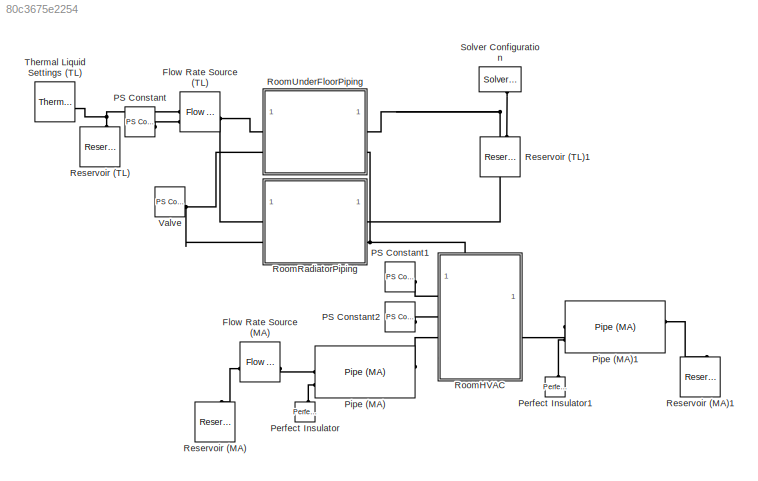
MODEL slx_80c3675e2254
KIND model
CONFIG AbsTol = 1e-3
CONFIG EnableMultiTasking = off
CONFIG FixedStep = auto
CONFIG MaxStep = auto
CONFIG MinStep = auto
CONFIG RelTol = 1e-3
CONFIG SampleTimeConstraint = Unconstrained
CONFIG SolverName = VariableStepAuto
CONFIG StartTime = 0.0
CONFIG StopTime = 36000
BLOCK [Reference] Flow Rate Source (MA)  REF=fl_lib/Moist Air/Sources/Flow Rate Source
(MA)
  SourceBlock = fl_lib/Moist Air/Sources/Flow Rate Source\n(MA)
  SourceType = Flow Rate Source\n(MA)
BLOCK [Reference] Flow Rate Source (TL)  REF=fl_lib/Thermal Liquid/Sources/Flow Rate Source
(TL)
  SourceBlock = fl_lib/Thermal Liquid/Sources/Flow Rate Source\n(TL)
  SourceType = Flow Rate Source\n(TL)
BLOCK [Reference] PS Constant  REF=fl_lib/Physical Signals/Sources/PS Constant
  SourceBlock = fl_lib/Physical Signals/Sources/PS Constant
  SourceType = PS Constant
BLOCK [Reference] PS Constant1  REF=fl_lib/Physical Signals/Sources/PS Constant
  SourceBlock = fl_lib/Physical Signals/Sources/PS Constant
  SourceType = PS Constant
BLOCK [Reference] PS Constant2  REF=fl_lib/Physical Signals/Sources/PS Constant
  SourceBlock = fl_lib/Physical Signals/Sources/PS Constant
  SourceType = PS Constant
BLOCK [Reference] Perfect Insulator  REF=fl_lib/Thermal/Thermal Elements/Perfect Insulator
  NameLocation = right
  SourceBlock = fl_lib/Thermal/Thermal Elements/Perfect Insulator
  SourceType = Perfect Insulator
BLOCK [Reference] Perfect Insulator1  REF=fl_lib/Thermal/Thermal Elements/Perfect Insulator
  NameLocation = right
  SourceBlock = fl_lib/Thermal/Thermal Elements/Perfect Insulator
  SourceType = Perfect Insulator
BLOCK [Reference] Pipe (MA)  REF=fl_lib/Moist Air/Elements/Pipe (MA)
  SourceBlock = fl_lib/Moist Air/Elements/Pipe (MA)
  SourceType = Pipe (MA)
BLOCK [Reference] Pipe (MA)1  REF=fl_lib/Moist Air/Elements/Pipe (MA)
  SourceBlock = fl_lib/Moist Air/Elements/Pipe (MA)
  SourceType = Pipe (MA)
BLOCK [Reference] Reservoir (MA)  REF=fl_lib/Moist Air/Elements/Reservoir (MA)
  NameLocation = right
  SourceBlock = fl_lib/Moist Air/Elements/Reservoir (MA)
  SourceType = Reservoir (MA)
BLOCK [Reference] Reservoir (MA)1  REF=fl_lib/Moist Air/Elements/Reservoir (MA)
  NameLocation = right
  SourceBlock = fl_lib/Moist Air/Elements/Reservoir (MA)
  SourceType = Reservoir (MA)
BLOCK [Reference] Reservoir (TL)  REF=fl_lib/Thermal Liquid/Elements/Reservoir (TL)
  NameLocation = right
  SourceBlock = fl_lib/Thermal Liquid/Elements/Reservoir (TL)
  SourceType = Reservoir (TL)
BLOCK [Reference] Reservoir (TL)1  REF=fl_lib/Thermal Liquid/Elements/Reservoir (TL)
  NameLocation = right
  SourceBlock = fl_lib/Thermal Liquid/Elements/Reservoir (TL)
  SourceType = Reservoir (TL)
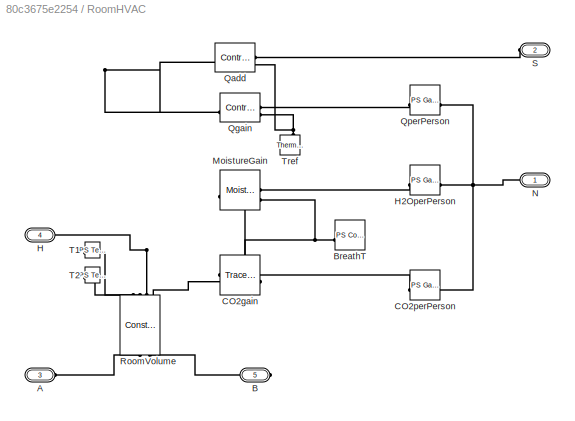
BLOCK [SubSystem] RoomHVAC
  PortSchema = {"entries":[{"content":{"sides":[{"content":{"connectorIds":["LConn1","LConn2","LConn3"]},"type":"ConnectorPlacement.EquallySpacedRectSide","uuid":"1f9dd9b5-3bf6-4814-b841-c20cb5c6b200"},{"content":{"connectorIds":["RConn1"],"side":"RIGHT"},"type":"ConnectorPlacement.EquallySpacedRectSide","uuid":"2c7853a1-d392-479e-8ded-97e635320fc4"},{"content":{"connectorIds":["LConn4"],"side":"TOP"},"type":"Co...<+271ch>
BLOCK [PMIOPort] RoomHVAC/A
  Port = 3
  Side = Left
BLOCK [PMIOPort] RoomHVAC/B
  Port = 5
  Side = Right
BLOCK [Reference] RoomHVAC/BreathT  REF=fl_lib/Physical Signals/Sources/PS Constant
  NameLocation = right
  SourceBlock = fl_lib/Physical Signals/Sources/PS Constant
  SourceType = PS Constant
BLOCK [Reference] RoomHVAC/CO2gain  REF=fl_lib/Moist Air/Sources/Moisture & Trace Gas
Sources/Trace Gas Source
(MA)
  SourceBlock = fl_lib/Moist Air/Sources/Moisture & Trace Gas\nSources/Trace Gas Source\n(MA)
  SourceType = Trace Gas Source\n(MA)
BLOCK [Reference] RoomHVAC/CO2perPerson  REF=fl_lib/Physical Signals/Functions/PS Gain
  SourceBlock = fl_lib/Physical Signals/Functions/PS Gain
  SourceType = PS Gain
BLOCK [PMIOPort] RoomHVAC/H
  NameLocation = left
  Port = 4
  Side = Left
BLOCK [Reference] RoomHVAC/H2OperPerson  REF=fl_lib/Physical Signals/Functions/PS Gain
  SourceBlock = fl_lib/Physical Signals/Functions/PS Gain
  SourceType = PS Gain
BLOCK [Reference] RoomHVAC/MoistureGain  REF=fl_lib/Moist Air/Sources/Moisture & Trace Gas
Sources/Moisture Source (MA)
  SourceBlock = fl_lib/Moist Air/Sources/Moisture & Trace Gas\nSources/Moisture Source (MA)
  SourceType = Moisture Source (MA)
BLOCK [PMIOPort] RoomHVAC/N
  Side = Left
BLOCK [Reference] RoomHVAC/Qadd  REF=fl_lib/Thermal/Thermal Sources/Controlled Heat Flow
Rate Source
  SourceBlock = fl_lib/Thermal/Thermal Sources/Controlled Heat Flow\nRate Source
  SourceType = Controlled Heat Flow\nRate Source
BLOCK [Reference] RoomHVAC/Qgain  REF=fl_lib/Thermal/Thermal Sources/Controlled Heat Flow
Rate Source
  SourceBlock = fl_lib/Thermal/Thermal Sources/Controlled Heat Flow\nRate Source
  SourceType = Controlled Heat Flow\nRate Source
BLOCK [Reference] RoomHVAC/QperPerson  REF=fl_lib/Physical Signals/Functions/PS Gain
  SourceBlock = fl_lib/Physical Signals/Functions/PS Gain
  SourceType = PS Gain
BLOCK [Reference] RoomHVAC/RoomVolume  REF=fl_lib/Moist Air/Elements/Constant Volume
Chamber (MA)
  NameLocation = left
  SourceBlock = fl_lib/Moist Air/Elements/Constant Volume\nChamber (MA)
  SourceType = Constant Volume\nChamber (MA)
BLOCK [PMIOPort] RoomHVAC/S
  Port = 2
  Side = Left
BLOCK [Reference] RoomHVAC/T1  REF=fl_lib/Physical Signals/Sinks/PS Terminator
  NameLocation = left
  SourceBlock = fl_lib/Physical Signals/Sinks/PS Terminator
  SourceType = PS Terminator
BLOCK [Reference] RoomHVAC/T2  REF=fl_lib/Physical Signals/Sinks/PS Terminator
  NameLocation = left
  SourceBlock = fl_lib/Physical Signals/Sinks/PS Terminator
  SourceType = PS Terminator
BLOCK [Reference] RoomHVAC/Tref  REF=fl_lib/Thermal/Thermal Elements/Thermal Reference
  NameLocation = right
  SourceBlock = fl_lib/Thermal/Thermal Elements/Thermal Reference
  SourceType = Thermal Reference
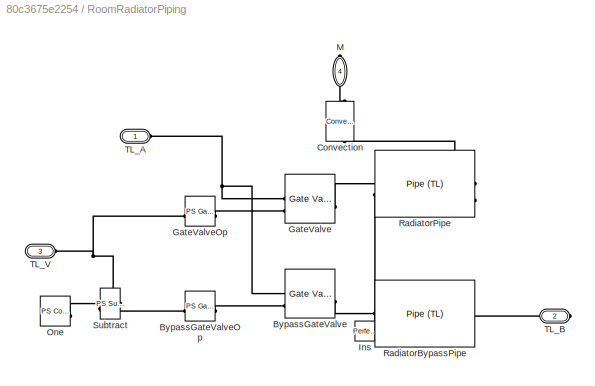
BLOCK [SubSystem] RoomRadiatorPiping
BLOCK [Reference] RoomRadiatorPiping/BypassGateValve  REF=SimscapeFluids_lib/Thermal Liquid/Valves & Orifices/Flow Control Valves/Gate Valve (TL)
  SourceBlock = SimscapeFluids_lib/Thermal Liquid/Valves & Orifices/Flow Control Valves/Gate Valve (TL)
  SourceType = Gate Valve (TL)
BLOCK [Reference] RoomRadiatorPiping/BypassGateValveOp  REF=fl_lib/Physical Signals/Functions/PS Gain
  SourceBlock = fl_lib/Physical Signals/Functions/PS Gain
  SourceType = PS Gain
BLOCK [Reference] RoomRadiatorPiping/Convection  REF=fl_lib/Thermal/Thermal Elements/Convective Heat
Transfer
  NameLocation = right
  SourceBlock = fl_lib/Thermal/Thermal Elements/Convective Heat\nTransfer
  SourceType = Convective Heat\nTransfer
BLOCK [Reference] RoomRadiatorPiping/GateValve  REF=SimscapeFluids_lib/Thermal Liquid/Valves & Orifices/Flow Control Valves/Gate Valve (TL)
  SourceBlock = SimscapeFluids_lib/Thermal Liquid/Valves & Orifices/Flow Control Valves/Gate Valve (TL)
  SourceType = Gate Valve (TL)
BLOCK [Reference] RoomRadiatorPiping/GateValveOp  REF=fl_lib/Physical Signals/Functions/PS Gain
  SourceBlock = fl_lib/Physical Signals/Functions/PS Gain
  SourceType = PS Gain
BLOCK [Reference] RoomRadiatorPiping/Ins  REF=fl_lib/Thermal/Thermal Elements/Perfect Insulator
  SourceBlock = fl_lib/Thermal/Thermal Elements/Perfect Insulator
  SourceType = Perfect Insulator
BLOCK [PMIOPort] RoomRadiatorPiping/M
  NameLocation = top
  Port = 4
  Side = Right
BLOCK [Reference] RoomRadiatorPiping/One  REF=fl_lib/Physical Signals/Sources/PS Constant
  SourceBlock = fl_lib/Physical Signals/Sources/PS Constant
  SourceType = PS Constant
BLOCK [Reference] RoomRadiatorPiping/RadiatorBypassPipe  REF=fl_lib/Thermal Liquid/Elements/Pipe (TL)
  SourceBlock = fl_lib/Thermal Liquid/Elements/Pipe (TL)
  SourceType = Pipe (TL)
BLOCK [Reference] RoomRadiatorPiping/RadiatorPipe  REF=fl_lib/Thermal Liquid/Elements/Pipe (TL)
  NameLocation = top
  SourceBlock = fl_lib/Thermal Liquid/Elements/Pipe (TL)
  SourceType = Pipe (TL)
BLOCK [Reference] RoomRadiatorPiping/Subtract  REF=fl_lib/Physical Signals/Functions/PS Subtract
  SourceBlock = fl_lib/Physical Signals/Functions/PS Subtract
  SourceType = PS Subtract
BLOCK [PMIOPort] RoomRadiatorPiping/TL_A
  NameLocation = left
  Side = Left
BLOCK [PMIOPort] RoomRadiatorPiping/TL_B
  NameLocation = right
  Port = 2
  Side = Right
BLOCK [PMIOPort] RoomRadiatorPiping/TL_V
  NameLocation = left
  Port = 3
  Side = Left
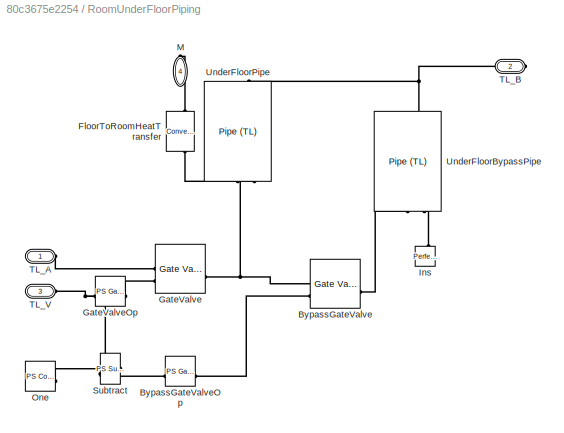
BLOCK [SubSystem] RoomUnderFloorPiping
  NameLocation = top
BLOCK [Reference] RoomUnderFloorPiping/BypassGateValve  REF=SimscapeFluids_lib/Thermal Liquid/Valves & Orifices/Flow Control Valves/Gate Valve (TL)
  SourceBlock = SimscapeFluids_lib/Thermal Liquid/Valves & Orifices/Flow Control Valves/Gate Valve (TL)
  SourceType = Gate Valve (TL)
BLOCK [Reference] RoomUnderFloorPiping/BypassGateValveOp  REF=fl_lib/Physical Signals/Functions/PS Gain
  NameLocation = top
  SourceBlock = fl_lib/Physical Signals/Functions/PS Gain
  SourceType = PS Gain
BLOCK [Reference] RoomUnderFloorPiping/FloorToRoomHeatTransfer  REF=fl_lib/Thermal/Thermal Elements/Convective Heat
Transfer
  NameLocation = left
  SourceBlock = fl_lib/Thermal/Thermal Elements/Convective Heat\nTransfer
  SourceType = Convective Heat\nTransfer
BLOCK [Reference] RoomUnderFloorPiping/GateValve  REF=SimscapeFluids_lib/Thermal Liquid/Valves & Orifices/Flow Control Valves/Gate Valve (TL)
  SourceBlock = SimscapeFluids_lib/Thermal Liquid/Valves & Orifices/Flow Control Valves/Gate Valve (TL)
  SourceType = Gate Valve (TL)
BLOCK [Reference] RoomUnderFloorPiping/GateValveOp  REF=fl_lib/Physical Signals/Functions/PS Gain
  NameLocation = top
  SourceBlock = fl_lib/Physical Signals/Functions/PS Gain
  SourceType = PS Gain
BLOCK [Reference] RoomUnderFloorPiping/Ins  REF=fl_lib/Thermal/Thermal Elements/Perfect Insulator
  NameLocation = right
  SourceBlock = fl_lib/Thermal/Thermal Elements/Perfect Insulator
  SourceType = Perfect Insulator
BLOCK [PMIOPort] RoomUnderFloorPiping/M
  NameLocation = top
  Port = 4
  Side = Right
BLOCK [Reference] RoomUnderFloorPiping/One  REF=fl_lib/Physical Signals/Sources/PS Constant
  SourceBlock = fl_lib/Physical Signals/Sources/PS Constant
  SourceType = PS Constant
BLOCK [Reference] RoomUnderFloorPiping/Subtract  REF=fl_lib/Physical Signals/Functions/PS Subtract
  SourceBlock = fl_lib/Physical Signals/Functions/PS Subtract
  SourceType = PS Subtract
BLOCK [PMIOPort] RoomUnderFloorPiping/TL_A
  NameLocation = left
  Side = Left
BLOCK [PMIOPort] RoomUnderFloorPiping/TL_B
  NameLocation = right
  Port = 2
  Side = Right
BLOCK [PMIOPort] RoomUnderFloorPiping/TL_V
  NameLocation = left
  Port = 3
  Side = Left
BLOCK [Reference] RoomUnderFloorPiping/UnderFloorBypassPipe  REF=fl_lib/Thermal Liquid/Elements/Pipe (TL)
  NameLocation = right
  SourceBlock = fl_lib/Thermal Liquid/Elements/Pipe (TL)
  SourceType = Pipe (TL)
BLOCK [Reference] RoomUnderFloorPiping/UnderFloorPipe  REF=fl_lib/Thermal Liquid/Elements/Pipe (TL)
  NameLocation = right
  SourceBlock = fl_lib/Thermal Liquid/Elements/Pipe (TL)
  SourceType = Pipe (TL)
BLOCK [Reference] Solver Configuration  REF=nesl_utility/Solver
Configuration
  NameLocation = right
  SourceBlock = nesl_utility/Solver\nConfiguration
  SourceType = Solver\nConfiguration
BLOCK [Reference] Thermal Liquid Settings (TL)  REF=fl_lib/Thermal Liquid/Utilities/Thermal Liquid
Settings (TL)
  SourceBlock = fl_lib/Thermal Liquid/Utilities/Thermal Liquid\nSettings (TL)
  SourceType = Thermal Liquid\nSettings (TL)
BLOCK [Reference] Valve  REF=fl_lib/Physical Signals/Sources/PS Constant
  SourceBlock = fl_lib/Physical Signals/Sources/PS Constant
  SourceType = PS Constant
PLINE Flow Rate Source (MA):LConn1 -- Reservoir (MA):LConn1
PLINE Flow Rate Source (MA):RConn1 -- Pipe (MA):LConn1
PNET net1: Flow Rate Source (TL):LConn1 -- Reservoir (TL):LConn1 -- Thermal Liquid Settings (TL):RConn1
PLINE Flow Rate Source (TL):LConn2 -- PS Constant:RConn1
PNET net2: Flow Rate Source (TL):RConn1 -- RoomRadiatorPiping:LConn1 -- RoomUnderFloorPiping:LConn1
PLINE PS Constant1:RConn1 -- RoomHVAC:LConn1
PLINE PS Constant2:RConn1 -- RoomHVAC:LConn2
PLINE Perfect Insulator1:LConn1 -- Pipe (MA)1:LConn2
PLINE Perfect Insulator:LConn1 -- Pipe (MA):LConn2
PLINE Pipe (MA)1:LConn1 -- RoomHVAC:RConn1
PLINE Pipe (MA)1:RConn1 -- Reservoir (MA)1:LConn1
PLINE Pipe (MA):RConn1 -- RoomHVAC:LConn3
PNET net3: Reservoir (TL)1:LConn1 -- RoomRadiatorPiping:RConn1 -- RoomUnderFloorPiping:RConn1 -- Solver Configuration:RConn1
PLINE RoomHVAC/A:RConn1 -- RoomHVAC/RoomVolume:LConn1
PLINE RoomHVAC/B:RConn1 -- RoomHVAC/RoomVolume:LConn2
PNET net4: RoomHVAC/BreathT:RConn1 -- RoomHVAC/CO2gain:RConn2 -- RoomHVAC/MoistureGain:RConn2
PNET net5: RoomHVAC/CO2gain:LConn1 -- RoomHVAC/MoistureGain:LConn1 -- RoomHVAC/RoomVolume:RConn4
PLINE RoomHVAC/CO2gain:RConn1 -- RoomHVAC/CO2perPerson:RConn1
PNET net6: RoomHVAC/CO2perPerson:LConn1 -- RoomHVAC/H2OperPerson:LConn1 -- RoomHVAC/N:RConn1 -- RoomHVAC/QperPerson:LConn1
PLINE RoomHVAC/H2OperPerson:RConn1 -- RoomHVAC/MoistureGain:RConn1
PNET net7: RoomHVAC/H:RConn1 -- RoomHVAC/Qadd:LConn1 -- RoomHVAC/Qgain:LConn1 -- RoomHVAC/RoomVolume:RConn3
PLINE RoomHVAC/Qadd:RConn1 -- RoomHVAC/S:RConn1
PNET net8: RoomHVAC/Qadd:RConn2 -- RoomHVAC/Qgain:RConn2 -- RoomHVAC/Tref:LConn1
PLINE RoomHVAC/Qgain:RConn1 -- RoomHVAC/QperPerson:RConn1
PLINE RoomHVAC/RoomVolume:RConn1 -- RoomHVAC/T2:LConn1
PLINE RoomHVAC/RoomVolume:RConn2 -- RoomHVAC/T1:LConn1
PNET net9: RoomHVAC:LConn4 -- RoomRadiatorPiping:RConn2 -- RoomUnderFloorPiping:RConn2
PNET net10: RoomRadiatorPiping/BypassGateValve:LConn1 -- RoomRadiatorPiping/GateValve:LConn1 -- RoomRadiatorPiping/TL_A:RConn1
PLINE RoomRadiatorPiping/BypassGateValve:LConn2 -- RoomRadiatorPiping/BypassGateValveOp:RConn1
PLINE RoomRadiatorPiping/BypassGateValve:RConn1 -- RoomRadiatorPiping/RadiatorBypassPipe:LConn1
PLINE RoomRadiatorPiping/BypassGateValveOp:LConn1 -- RoomRadiatorPiping/Subtract:RConn1
PLINE RoomRadiatorPiping/Convection:LConn1 -- RoomRadiatorPiping/RadiatorPipe:LConn2
PLINE RoomRadiatorPiping/Convection:RConn1 -- RoomRadiatorPiping/M:RConn1
PLINE RoomRadiatorPiping/GateValve:LConn2 -- RoomRadiatorPiping/GateValveOp:RConn1
PLINE RoomRadiatorPiping/GateValve:RConn1 -- RoomRadiatorPiping/RadiatorPipe:LConn1
PNET net11: RoomRadiatorPiping/GateValveOp:LConn1 -- RoomRadiatorPiping/Subtract:LConn2 -- RoomRadiatorPiping/TL_V:RConn1
PLINE RoomRadiatorPiping/Ins:LConn1 -- RoomRadiatorPiping/RadiatorBypassPipe:LConn2
PLINE RoomRadiatorPiping/One:RConn1 -- RoomRadiatorPiping/Subtract:LConn1
PNET net12: RoomRadiatorPiping/RadiatorBypassPipe:RConn1 -- RoomRadiatorPiping/RadiatorPipe:RConn1 -- RoomRadiatorPiping/TL_B:RConn1
PNET net13: RoomRadiatorPiping:LConn2 -- RoomUnderFloorPiping:LConn2 -- Valve:RConn1
PNET net14: RoomUnderFloorPiping/BypassGateValve:LConn1 -- RoomUnderFloorPiping/GateValve:RConn1 -- RoomUnderFloorPiping/UnderFloorPipe:LConn1
PLINE RoomUnderFloorPiping/BypassGateValve:LConn2 -- RoomUnderFloorPiping/BypassGateValveOp:RConn1
PLINE RoomUnderFloorPiping/BypassGateValve:RConn1 -- RoomUnderFloorPiping/UnderFloorBypassPipe:LConn1
PLINE RoomUnderFloorPiping/BypassGateValveOp:LConn1 -- RoomUnderFloorPiping/Subtract:RConn1
PLINE RoomUnderFloorPiping/FloorToRoomHeatTransfer:LConn1 -- RoomUnderFloorPiping/UnderFloorPipe:LConn2
PLINE RoomUnderFloorPiping/FloorToRoomHeatTransfer:RConn1 -- RoomUnderFloorPiping/M:RConn1
PLINE RoomUnderFloorPiping/GateValve:LConn1 -- RoomUnderFloorPiping/TL_A:RConn1
PLINE RoomUnderFloorPiping/GateValve:LConn2 -- RoomUnderFloorPiping/GateValveOp:RConn1
PNET net15: RoomUnderFloorPiping/GateValveOp:LConn1 -- RoomUnderFloorPiping/Subtract:LConn2 -- RoomUnderFloorPiping/TL_V:RConn1
PLINE RoomUnderFloorPiping/Ins:LConn1 -- RoomUnderFloorPiping/UnderFloorBypassPipe:LConn2
PLINE RoomUnderFloorPiping/One:RConn1 -- RoomUnderFloorPiping/Subtract:LConn1
PNET net16: RoomUnderFloorPiping/TL_B:RConn1 -- RoomUnderFloorPiping/UnderFloorBypassPipe:RConn1 -- RoomUnderFloorPiping/UnderFloorPipe:RConn1
note: PNET lines group multi-terminal physical nets as a canonical sorted terminal list (undirected conserving connections); 2-terminal nets keep the pairwise PLINE form
